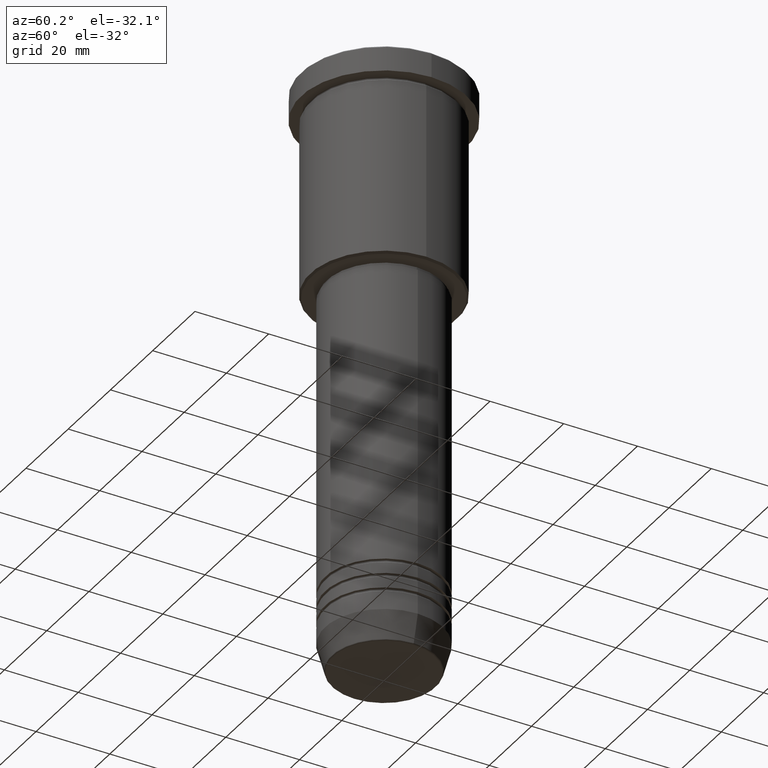
[diagram: clean part render]
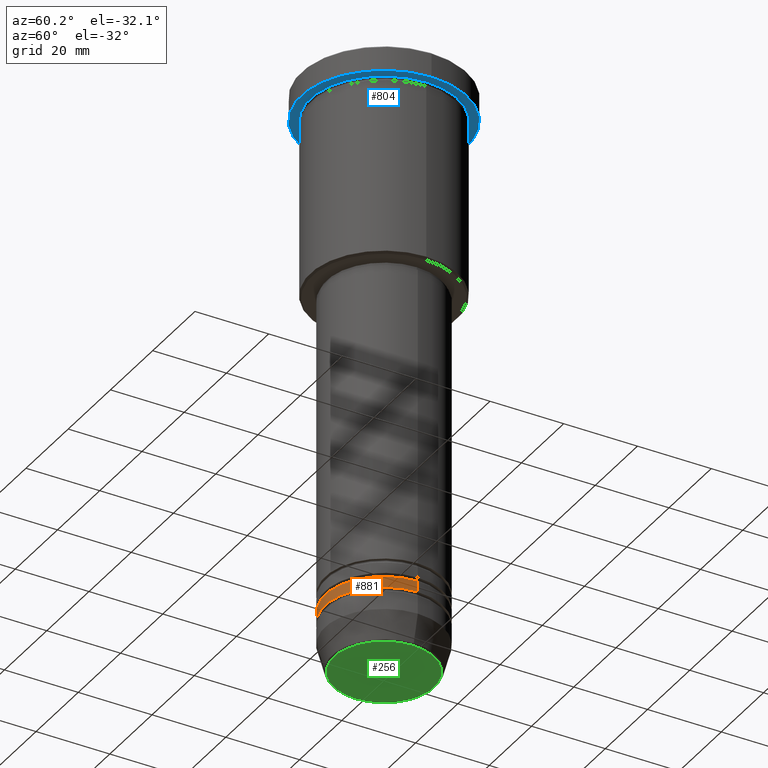
[diagram: same view with three faces highlighted in distinct colors, each labeled with its STEP entity id]
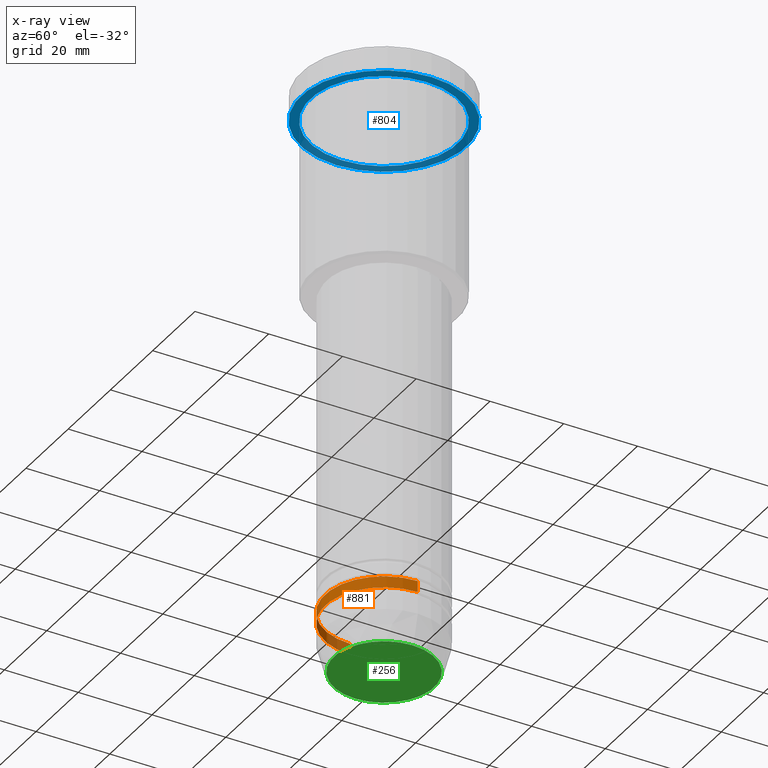
[diagram: x-ray of the same camera — body ghosted, the three highlighted faces saturated]
A machine part, auxiliary view with three faces highlighted in distinct colors.
The next image is the same camera in x-ray (body ghosted, the three faces saturated) — at least one of them is partly hidden behind the body in this view.
Their STEP definitions:

[orange] entity #881 — the highlighted cylindrical surface (partial cylindrical patch) has radius 16 mm, axis along (-0, -0, 1).
#3 = ORIENTED_EDGE ( 'NONE', *, *, #186, .T. ) ;
#65 = ORIENTED_EDGE ( 'NONE', *, *, #920, .F. ) ;
#103 = CARTESIAN_POINT ( 'NONE',  ( 16.00000000000000000, 0.000000000000000000, -146.4999999999999716 ) ) ;
#106 = DIRECTION ( 'NONE',  ( -0.000000000000000000, -0.000000000000000000, 1.000000000000000000 ) ) ;
#116 = CARTESIAN_POINT ( 'NONE',  ( 0.000000000000000000, 0.000000000000000000, 0.000000000000000000 ) ) ;
#119 = VERTEX_POINT ( 'NONE', #103 ) ;
#128 = EDGE_CURVE ( 'NONE', #695, #119, #353, .T. ) ;
#132 = CARTESIAN_POINT ( 'NONE',  ( -16.00000000000000000, 1.959434878635765131E-15, -146.4999999999999716 ) ) ;
#150 = VERTEX_POINT ( 'NONE', #907 ) ;
#162 = VECTOR ( 'NONE', #374, 1000.000000000000000 ) ;
#186 = EDGE_CURVE ( 'NONE', #119, #840, #1167, .T. ) ;
#204 = DIRECTION ( 'NONE',  ( 1.000000000000000000, 0.000000000000000000, 0.000000000000000000 ) ) ;
#212 = CARTESIAN_POINT ( 'NONE',  ( 0.000000000000000000, 0.000000000000000000, -143.5000000000000000 ) ) ;
#247 = CARTESIAN_POINT ( 'NONE',  ( 16.00000000000000000, 0.000000000000000000, -143.5000000000000000 ) ) ;
#262 = ORIENTED_EDGE ( 'NONE', *, *, #412, .F. ) ;
#264 = DIRECTION ( 'NONE',  ( 1.000000000000000000, 0.000000000000000000, 0.000000000000000000 ) ) ;
#282 = VECTOR ( 'NONE', #592, 1000.000000000000000 ) ;
#353 = CIRCLE ( 'NONE', #778, 16.00000000000000000 ) ;
#362 = CARTESIAN_POINT ( 'NONE',  ( 16.00000000000000000, 0.000000000000000000, 0.000000000000000000 ) ) ;
#374 = DIRECTION ( 'NONE',  ( -0.000000000000000000, -0.000000000000000000, 1.000000000000000000 ) ) ;
#412 = EDGE_CURVE ( 'NONE', #150, #840, #486, .T. ) ;
#486 = CIRCLE ( 'NONE', #1152, 16.00000000000000000 ) ;
#488 = AXIS2_PLACEMENT_3D ( 'NONE', #116, #106, #768 ) ;
#564 = FACE_OUTER_BOUND ( 'NONE', #963, .T. ) ;
#592 = DIRECTION ( 'NONE',  ( -0.000000000000000000, -0.000000000000000000, 1.000000000000000000 ) ) ;
#647 = CYLINDRICAL_SURFACE ( 'NONE', #488, 16.00000000000000000 ) ;
#651 = DIRECTION ( 'NONE',  ( -0.000000000000000000, -0.000000000000000000, 1.000000000000000000 ) ) ;
#688 = LINE ( 'NONE', #1052, #282 ) ;
#695 = VERTEX_POINT ( 'NONE', #132 ) ;
#768 = DIRECTION ( 'NONE',  ( 1.000000000000000000, 0.000000000000000000, 0.000000000000000000 ) ) ;
#778 = AXIS2_PLACEMENT_3D ( 'NONE', #806, #1008, #264 ) ;
#806 = CARTESIAN_POINT ( 'NONE',  ( 0.000000000000000000, 0.000000000000000000, -146.4999999999999716 ) ) ;
#814 = ORIENTED_EDGE ( 'NONE', *, *, #128, .T. ) ;
#840 = VERTEX_POINT ( 'NONE', #247 ) ;
#881 = ADVANCED_FACE ( 'NONE', ( #564 ), #647, .T. ) ;
#907 = CARTESIAN_POINT ( 'NONE',  ( -16.00000000000000000, 1.959434878635765131E-15, -143.5000000000000000 ) ) ;
#920 = EDGE_CURVE ( 'NONE', #695, #150, #688, .T. ) ;
#963 = EDGE_LOOP ( 'NONE', ( #65, #814, #3, #262 ) ) ;
#1008 = DIRECTION ( 'NONE',  ( -0.000000000000000000, -0.000000000000000000, 1.000000000000000000 ) ) ;
#1052 = CARTESIAN_POINT ( 'NONE',  ( -16.00000000000000000, 1.959434878635765131E-15, 0.000000000000000000 ) ) ;
#1152 = AXIS2_PLACEMENT_3D ( 'NONE', #212, #651, #204 ) ;
#1167 = LINE ( 'NONE', #362, #162 ) ;

[blue] entity #804 — the highlighted planar face has unit normal (0, 0, -1).
#9 = VERTEX_POINT ( 'NONE', #342 ) ;
#31 = DIRECTION ( 'NONE',  ( 0.000000000000000000, 0.000000000000000000, -1.000000000000000000 ) ) ;
#58 = EDGE_CURVE ( 'NONE', #887, #580, #652, .T. ) ;
#59 = DIRECTION ( 'NONE',  ( -0.000000000000000000, -0.000000000000000000, 1.000000000000000000 ) ) ;
#62 = FACE_BOUND ( 'NONE', #302, .T. ) ;
#70 = AXIS2_PLACEMENT_3D ( 'NONE', #1088, #912, #383 ) ;
#93 = AXIS2_PLACEMENT_3D ( 'NONE', #836, #304, #102 ) ;
#102 = DIRECTION ( 'NONE',  ( 1.000000000000000000, 0.000000000000000000, 0.000000000000000000 ) ) ;
#129 = CIRCLE ( 'NONE', #226, 20.00000000000000000 ) ;
#140 = ORIENTED_EDGE ( 'NONE', *, *, #883, .F. ) ;
#141 = AXIS2_PLACEMENT_3D ( 'NONE', #1154, #422, #1065 ) ;
#145 = AXIS2_PLACEMENT_3D ( 'NONE', #198, #31, #671 ) ;
#198 = CARTESIAN_POINT ( 'NONE',  ( 0.000000000000000000, 22.50000000000000000, -6.999999999999995559 ) ) ;
#219 = PLANE ( 'NONE',  #145 ) ;
#226 = AXIS2_PLACEMENT_3D ( 'NONE', #305, #59, #1074 ) ;
#249 = FACE_OUTER_BOUND ( 'NONE', #1113, .T. ) ;
#252 = ORIENTED_EDGE ( 'NONE', *, *, #58, .T. ) ;
#260 = CIRCLE ( 'NONE', #70, 22.50000000000000000 ) ;
#302 = EDGE_LOOP ( 'NONE', ( #1042, #252 ) ) ;
#304 = DIRECTION ( 'NONE',  ( -0.000000000000000000, -0.000000000000000000, 1.000000000000000000 ) ) ;
#305 = CARTESIAN_POINT ( 'NONE',  ( 0.000000000000000000, 0.000000000000000000, -6.999999999999995559 ) ) ;
#342 = CARTESIAN_POINT ( 'NONE',  ( -22.50000000000000000, 2.755455298081544778E-15, -6.999999999999995559 ) ) ;
#383 = DIRECTION ( 'NONE',  ( 1.000000000000000000, 0.000000000000000000, 0.000000000000000000 ) ) ;
#399 = CARTESIAN_POINT ( 'NONE',  ( 20.00000000000000000, 2.449293598294706513E-15, -6.999999999999995559 ) ) ;
#422 = DIRECTION ( 'NONE',  ( -0.000000000000000000, -0.000000000000000000, 1.000000000000000000 ) ) ;
#576 = CARTESIAN_POINT ( 'NONE',  ( 22.50000000000000000, 0.000000000000000000, -6.999999999999995559 ) ) ;
#580 = VERTEX_POINT ( 'NONE', #1129 ) ;
#652 = CIRCLE ( 'NONE', #141, 20.00000000000000000 ) ;
#654 = EDGE_CURVE ( 'NONE', #9, #1009, #260, .T. ) ;
#671 = DIRECTION ( 'NONE',  ( -1.000000000000000000, 0.000000000000000000, -0.000000000000000000 ) ) ;
#765 = ORIENTED_EDGE ( 'NONE', *, *, #654, .F. ) ;
#804 = ADVANCED_FACE ( 'NONE', ( #62, #249 ), #219, .T. ) ;
#836 = CARTESIAN_POINT ( 'NONE',  ( 0.000000000000000000, 0.000000000000000000, -6.999999999999995559 ) ) ;
#839 = CIRCLE ( 'NONE', #93, 22.50000000000000000 ) ;
#883 = EDGE_CURVE ( 'NONE', #1009, #9, #839, .T. ) ;
#887 = VERTEX_POINT ( 'NONE', #399 ) ;
#912 = DIRECTION ( 'NONE',  ( -0.000000000000000000, -0.000000000000000000, 1.000000000000000000 ) ) ;
#1009 = VERTEX_POINT ( 'NONE', #576 ) ;
#1042 = ORIENTED_EDGE ( 'NONE', *, *, #1047, .T. ) ;
#1047 = EDGE_CURVE ( 'NONE', #580, #887, #129, .T. ) ;
#1065 = DIRECTION ( 'NONE',  ( -1.000000000000000000, 0.000000000000000000, 0.000000000000000000 ) ) ;
#1074 = DIRECTION ( 'NONE',  ( -1.000000000000000000, 0.000000000000000000, 0.000000000000000000 ) ) ;
#1088 = CARTESIAN_POINT ( 'NONE',  ( 0.000000000000000000, 0.000000000000000000, -6.999999999999995559 ) ) ;
#1113 = EDGE_LOOP ( 'NONE', ( #140, #765 ) ) ;
#1129 = CARTESIAN_POINT ( 'NONE',  ( -20.00000000000000000, 0.000000000000000000, -6.999999999999995559 ) ) ;
#1154 = CARTESIAN_POINT ( 'NONE',  ( 0.000000000000000000, 0.000000000000000000, -6.999999999999995559 ) ) ;

[green] entity #256 — the highlighted planar face has unit normal (0, -0, 1).
#12 = CIRCLE ( 'NONE', #1060, 13.60671756277709576 ) ;
#42 = DIRECTION ( 'NONE',  ( 1.000000000000000000, 0.000000000000000000, 0.000000000000000000 ) ) ;
#224 = CARTESIAN_POINT ( 'NONE',  ( 0.000000000000000000, 0.000000000000000000, -159.9999999999999716 ) ) ;
#256 = ADVANCED_FACE ( 'NONE', ( #991 ), #736, .F. ) ;
#316 = DIRECTION ( 'NONE',  ( 1.000000000000000000, 0.000000000000000000, 0.000000000000000000 ) ) ;
#327 = EDGE_LOOP ( 'NONE', ( #657, #589 ) ) ;
#334 = CIRCLE ( 'NONE', #1174, 13.60671756277709576 ) ;
#427 = DIRECTION ( 'NONE',  ( 0.000000000000000000, 0.000000000000000000, -1.000000000000000000 ) ) ;
#497 = EDGE_CURVE ( 'NONE', #660, #685, #334, .T. ) ;
#589 = ORIENTED_EDGE ( 'NONE', *, *, #497, .T. ) ;
#626 = CARTESIAN_POINT ( 'NONE',  ( 0.000000000000000000, 0.000000000000000000, -159.9999999999999716 ) ) ;
#657 = ORIENTED_EDGE ( 'NONE', *, *, #828, .T. ) ;
#658 = CARTESIAN_POINT ( 'NONE',  ( 13.60671756277709576, 0.000000000000000000, -159.9999999999999716 ) ) ;
#660 = VERTEX_POINT ( 'NONE', #1183 ) ;
#685 = VERTEX_POINT ( 'NONE', #658 ) ;
#714 = DIRECTION ( 'NONE',  ( 0.000000000000000000, -0.000000000000000000, 1.000000000000000000 ) ) ;
#736 = PLANE ( 'NONE',  #742 ) ;
#742 = AXIS2_PLACEMENT_3D ( 'NONE', #626, #714, #987 ) ;
#828 = EDGE_CURVE ( 'NONE', #685, #660, #12, .T. ) ;
#865 = CARTESIAN_POINT ( 'NONE',  ( 0.000000000000000000, 0.000000000000000000, -159.9999999999999716 ) ) ;
#949 = DIRECTION ( 'NONE',  ( 0.000000000000000000, 0.000000000000000000, -1.000000000000000000 ) ) ;
#987 = DIRECTION ( 'NONE',  ( 1.000000000000000000, 0.000000000000000000, 0.000000000000000000 ) ) ;
#991 = FACE_OUTER_BOUND ( 'NONE', #327, .T. ) ;
#1060 = AXIS2_PLACEMENT_3D ( 'NONE', #865, #427, #42 ) ;
#1174 = AXIS2_PLACEMENT_3D ( 'NONE', #224, #949, #316 ) ;
#1183 = CARTESIAN_POINT ( 'NONE',  ( -13.60671756277709576, 1.695915260300171652E-15, -159.9999999999999716 ) ) ;